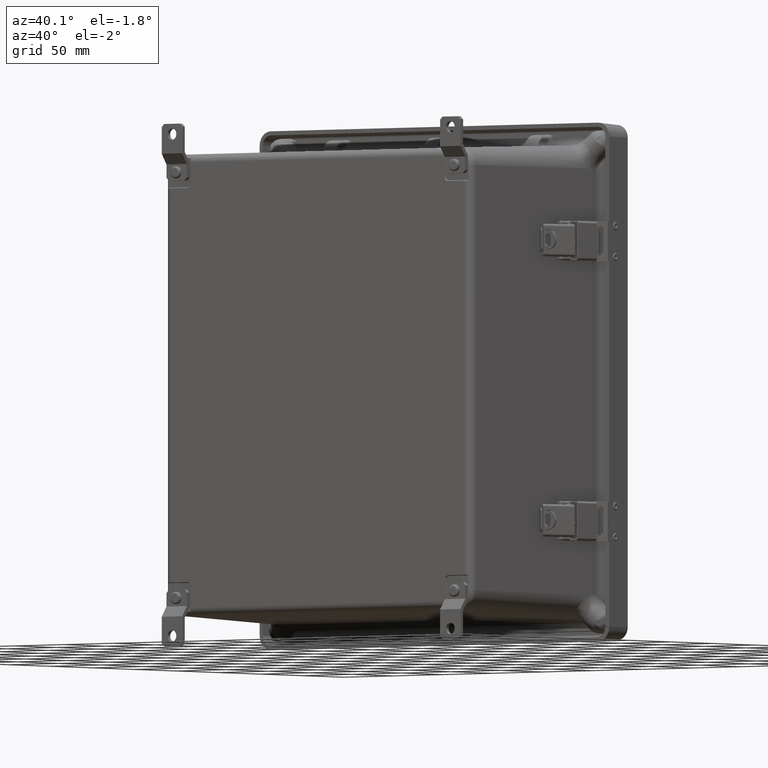
[diagram: clean part render]
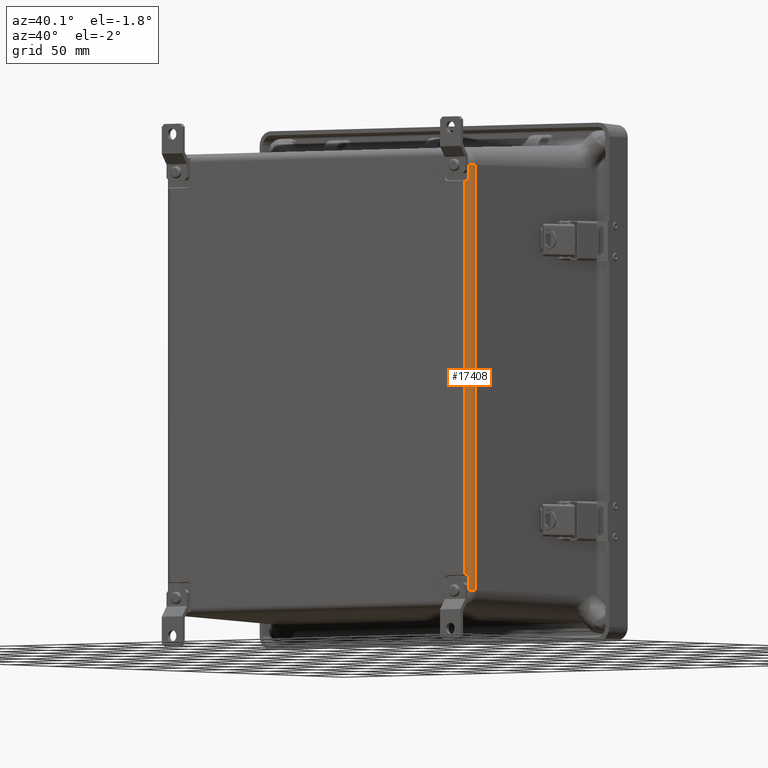
[diagram: same view with one face highlighted and labeled with its STEP entity id]
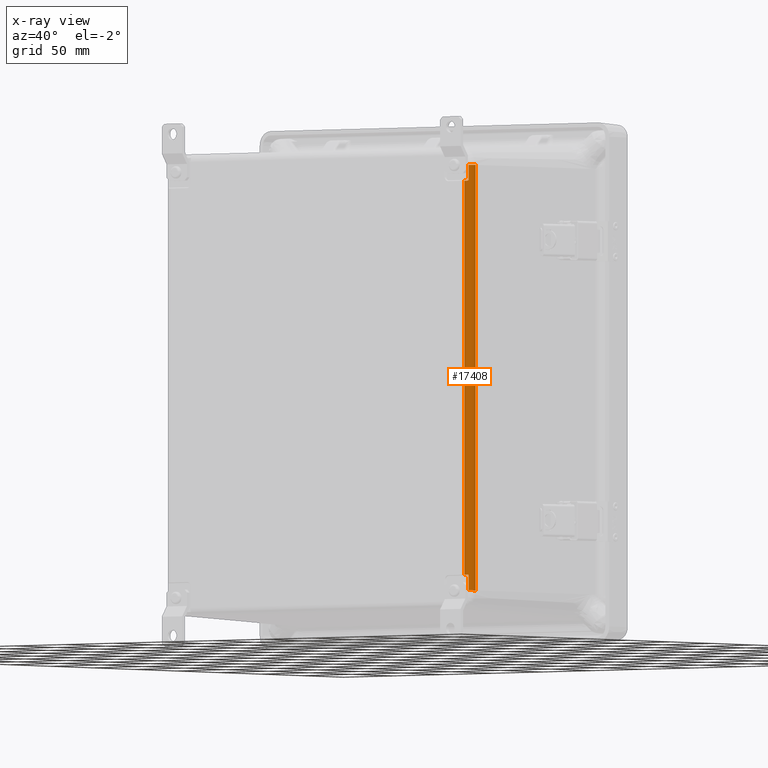
[diagram: x-ray of the same camera — body ghosted, the highlighted face saturated]
A machine part, auxiliary view. The second image highlights one B-rep face of the part: STEP entity #17408.
The next image is the same camera in x-ray: the body ghosted, the highlighted face saturated — about 0% of this face is hidden behind the body in this view.
In plain terms, the highlighted cylindrical surface (edge-blend (fillet) strip) has radius 6.3589 mm, axis along (0, 0, -1).
Its self-contained STEP definition (entity closure, byte-faithful):
#378 = DIRECTION ( 'NONE',  ( 1.000000000000000000, 0.0000000000000000000, 0.0000000000000000000 ) ) ;
#606 = CARTESIAN_POINT ( 'NONE',  ( 5.949744623173132600, -6.085731098691860000, 6.452978309398321100 ) ) ;
#2200 = ORIENTED_EDGE ( 'NONE', *, *, #11715, .T. ) ;
#2317 = LINE ( 'NONE', #38452, #3786 ) ;
#3786 = VECTOR ( 'NONE', #10078, 39.37007874015748100 ) ;
#3866 = CIRCLE ( 'NONE', #20037, 0.2503500000000002400 ) ;
#4077 = CARTESIAN_POINT ( 'NONE',  ( 5.912782705396014500, -6.106424124460360800, -5.973191476272734900 ) ) ;
#4154 = CARTESIAN_POINT ( 'NONE',  ( 5.949744623173131700, -6.085731098691859100, -6.453064890601678100 ) ) ;
#4399 =( BOUNDED_CURVE ( )  B_SPLINE_CURVE ( 3, ( #41432, #17820, #36860, #41641 ),
 .UNSPECIFIED., .F., .F. ) 
 B_SPLINE_CURVE_WITH_KNOTS ( ( 4, 4 ),
 ( 5.968991691712743900, 6.283185307179586200 ),
 .UNSPECIFIED. ) 
 CURVE ( )  GEOMETRIC_REPRESENTATION_ITEM ( )  RATIONAL_B_SPLINE_CURVE ( ( 1.000000000000000000, 0.9917904357860589700, 0.9917904357860589700, 1.000000000000000000 ) ) 
 REPRESENTATION_ITEM ( '' )  );
#5685 = CARTESIAN_POINT ( 'NONE',  ( 5.945630691465234800, -6.088452674556495300, 5.989415001250860000 ) ) ;
#5864 = DIRECTION ( 'NONE',  ( 0.0000000000000000000, 0.0000000000000000000, -1.000000000000000000 ) ) ;
#6743 = CARTESIAN_POINT ( 'NONE',  ( 5.836188400663856700, -6.128457498691858500, -5.970071971263227100 ) ) ;
#7361 = LINE ( 'NONE', #52114, #48132 ) ;
#8524 = CARTESIAN_POINT ( 'NONE',  ( 5.809860516774157300, -5.878107498691858400, 6.452978309398321100 ) ) ;
#8862 = CARTESIAN_POINT ( 'NONE',  ( 5.927805575556957000, -6.098958442211555900, -5.977245349787176900 ) ) ;
#10078 = DIRECTION ( 'NONE',  ( 0.0000000000000000000, 0.0000000000000000000, -1.000000000000000000 ) ) ;
#10259 = CARTESIAN_POINT ( 'NONE',  ( 5.949744623173132600, -6.085731098691860000, 6.002165274642971200 ) ) ;
#10473 = CARTESIAN_POINT ( 'NONE',  ( 5.938774503823132100, -6.092732702101429300, 5.982830861491367900 ) ) ;
#11715 = EDGE_CURVE ( 'NONE', #15386, #42441, #4399, .T. ) ;
#13068 = FACE_OUTER_BOUND ( 'NONE', #20851, .T. ) ;
#13181 = VERTEX_POINT ( 'NONE', #31679 ) ;
#13630 = CARTESIAN_POINT ( 'NONE',  ( 5.936117638240932400, -6.094311354246442200, -5.981208095454792200 ) ) ;
#15224 = CARTESIAN_POINT ( 'NONE',  ( 5.930667664263078900, -6.097403250842116800, 5.978306577161317700 ) ) ;
#15386 = VERTEX_POINT ( 'NONE', #46119 ) ;
#15604 = EDGE_CURVE ( 'NONE', #48296, #15386, #48795, .T. ) ;
#16088 = AXIS2_PLACEMENT_3D ( 'NONE', #57086, #28732, #378 ) ;
#16264 = CARTESIAN_POINT ( 'NONE',  ( 5.887231099927874700, -6.116201839998941700, -5.971077188012917400 ) ) ;
#17408 = ADVANCED_FACE ( 'NONE', ( #13068 ), #49370, .T. ) ;
#17820 = CARTESIAN_POINT ( 'NONE',  ( 5.862192073873441900, -6.124338463644835300, 5.970323235876694700 ) ) ;
#18069 = VERTEX_POINT ( 'NONE', #33259 ) ;
#18360 = CARTESIAN_POINT ( 'NONE',  ( 5.943499995308227900, -6.089822817054277400, -5.987036065948319500 ) ) ;
#19233 = EDGE_CURVE ( 'NONE', #31145, #42441, #7361, .T. ) ;
#19342 = VERTEX_POINT ( 'NONE', #48133 ) ;
#19981 = CARTESIAN_POINT ( 'NONE',  ( 5.918984578775467600, -6.103520474416673600, 5.974281421934980700 ) ) ;
#20037 = AXIS2_PLACEMENT_3D ( 'NONE', #34246, #5864, #39014 ) ;
#20187 = EDGE_CURVE ( 'NONE', #28504, #19342, #45814, .T. ) ;
#20851 = EDGE_LOOP ( 'NONE', ( #25706, #54072, #28704, #47454, #49452, #59745, #26770, #29901, #2200, #46607 ) ) ;
#23107 = CARTESIAN_POINT ( 'NONE',  ( 5.948771286609524400, -6.086391944683363400, -5.995340328322890300 ) ) ;
#23312 = VECTOR ( 'NONE', #47825, 39.37007874015748100 ) ;
#23562 = CARTESIAN_POINT ( 'NONE',  ( 5.809860516774157300, -6.128457498691858500, 5.969985390059869200 ) ) ;
#23706 = DIRECTION ( 'NONE',  ( -0.0000000000000000000, -0.0000000000000000000, 1.000000000000000000 ) ) ;
#24742 = CARTESIAN_POINT ( 'NONE',  ( 5.900225838078782200, -6.111679002446186900, 5.971547641516893100 ) ) ;
#24894 = EDGE_CURVE ( 'NONE', #58144, #18069, #3866, .T. ) ;
#25706 = ORIENTED_EDGE ( 'NONE', *, *, #58340, .T. ) ;
#26770 = ORIENTED_EDGE ( 'NONE', *, *, #27724, .T. ) ;
#27724 = EDGE_CURVE ( 'NONE', #18069, #48296, #42296, .T. ) ;
#27874 = CARTESIAN_POINT ( 'NONE',  ( 5.949744623173132600, -6.085731098691860000, -6.002251855846325600 ) ) ;
#28263 = B_SPLINE_CURVE_WITH_KNOTS ( 'NONE', 3,
 ( #56035, #60784, #32443, #4077, #37217, #8862, #41979, #13630, #46733, #18360, #51509, #23107, #56246, #27874 ),
 .UNSPECIFIED., .F., .F.,
 ( 4, 2, 2, 2, 2, 2, 4 ),
 ( 0.0000000000000000000, 0.0005220647425910906500, 0.001044129485182181300, 0.001305161856477708400, 0.001566194227773235700, 0.001827226599068762800, 0.002088258970364290200 ),
 .UNSPECIFIED. ) ;
#28504 = VERTEX_POINT ( 'NONE', #4154 ) ;
#28704 = ORIENTED_EDGE ( 'NONE', *, *, #40715, .T. ) ;
#28732 = DIRECTION ( 'NONE',  ( 0.0000000000000000000, 0.0000000000000000000, 1.000000000000000000 ) ) ;
#29311 = CARTESIAN_POINT ( 'NONE',  ( 5.949744623173133500, -6.085731098691859100, 5.998650317630509000 ) ) ;
#29510 = CARTESIAN_POINT ( 'NONE',  ( 5.887231099927874700, -6.116201839998941700, 5.970990606809562200 ) ) ;
#29901 = ORIENTED_EDGE ( 'NONE', *, *, #15604, .T. ) ;
#31145 = VERTEX_POINT ( 'NONE', #50817 ) ;
#31679 = CARTESIAN_POINT ( 'NONE',  ( 5.949744623173132600, -6.085731098691860000, -6.002251855846325600 ) ) ;
#32443 = CARTESIAN_POINT ( 'NONE',  ( 5.900223878103049400, -6.111679589152965200, -5.971634309243177600 ) ) ;
#33259 = CARTESIAN_POINT ( 'NONE',  ( 5.949744623173132600, -6.085731098691860000, 6.452978309398321100 ) ) ;
#34070 = CARTESIAN_POINT ( 'NONE',  ( 5.948763929146053900, -6.086396901630689800, 5.995232323439471300 ) ) ;
#34246 = CARTESIAN_POINT ( 'NONE',  ( 5.809860516774157300, -5.878107498691858400, 6.452978309398321100 ) ) ;
#36860 = CARTESIAN_POINT ( 'NONE',  ( 5.836188400663856700, -6.128457498691858500, 5.969985390059869200 ) ) ;
#37217 = CARTESIAN_POINT ( 'NONE',  ( 5.918945889177542200, -6.103539791424920800, -5.974357416981407100 ) ) ;
#37312 =( BOUNDED_CURVE ( )  B_SPLINE_CURVE ( 3, ( #58687, #6743, #44649, #16264 ),
 .UNSPECIFIED., .F., .F. ) 
 B_SPLINE_CURVE_WITH_KNOTS ( ( 4, 4 ),
 ( 3.141592653589793100, 3.455786269056635000 ),
 .UNSPECIFIED. ) 
 CURVE ( )  GEOMETRIC_REPRESENTATION_ITEM ( )  RATIONAL_B_SPLINE_CURVE ( ( 1.000000000000000000, 0.9917904357860589700, 0.9917904357860589700, 1.000000000000000000 ) ) 
 REPRESENTATION_ITEM ( '' )  );
#37410 = VERTEX_POINT ( 'NONE', #58532 ) ;
#38452 = CARTESIAN_POINT ( 'NONE',  ( 6.060058010318387600, -5.886844587691330200, 6.452978309398321100 ) ) ;
#38624 = AXIS2_PLACEMENT_3D ( 'NONE', #8524, #41835, #51385 ) ;
#38846 = CARTESIAN_POINT ( 'NONE',  ( 5.943491378647742400, -6.089828037965652600, 5.986942926962737700 ) ) ;
#39014 = DIRECTION ( 'NONE',  ( -1.000000000000000000, 0.0000000000000000000, 0.0000000000000000000 ) ) ;
#40715 = EDGE_CURVE ( 'NONE', #13181, #28504, #59590, .T. ) ;
#41432 = CARTESIAN_POINT ( 'NONE',  ( 5.887231099927874700, -6.116201839998941700, 5.970990606809562200 ) ) ;
#41641 = CARTESIAN_POINT ( 'NONE',  ( 5.809860516774157300, -6.128457498691858500, 5.969985390059869200 ) ) ;
#41835 = DIRECTION ( 'NONE',  ( 0.0000000000000000000, 0.0000000000000000000, -1.000000000000000000 ) ) ;
#41979 = CARTESIAN_POINT ( 'NONE',  ( 5.930659294234060600, -6.097407802480828000, -5.978389808472834400 ) ) ;
#42296 = LINE ( 'NONE', #52980, #54838 ) ;
#42441 = VERTEX_POINT ( 'NONE', #23562 ) ;
#43583 = CARTESIAN_POINT ( 'NONE',  ( 5.936133018952598500, -6.094302431539861500, 5.981130431724999100 ) ) ;
#44649 = CARTESIAN_POINT ( 'NONE',  ( 5.862192073873441900, -6.124338463644835300, -5.970409817080052600 ) ) ;
#45303 = EDGE_CURVE ( 'NONE', #58144, #19342, #2317, .T. ) ;
#45814 = CIRCLE ( 'NONE', #16088, 0.2503500000000002400 ) ;
#46119 = CARTESIAN_POINT ( 'NONE',  ( 5.887231099927874700, -6.116201839998941700, 5.970990606809562200 ) ) ;
#46607 = ORIENTED_EDGE ( 'NONE', *, *, #19233, .F. ) ;
#46733 = CARTESIAN_POINT ( 'NONE',  ( 5.938754766684076500, -6.092744770833294700, -5.982901192567437600 ) ) ;
#47454 = ORIENTED_EDGE ( 'NONE', *, *, #20187, .T. ) ;
#47825 = DIRECTION ( 'NONE',  ( 0.0000000000000000000, 0.0000000000000000000, -1.000000000000000000 ) ) ;
#48132 = VECTOR ( 'NONE', #23706, 39.37007874015748100 ) ;
#48133 = CARTESIAN_POINT ( 'NONE',  ( 6.060058010318387600, -5.886844587691329300, -6.453064890601678100 ) ) ;
#48296 = VERTEX_POINT ( 'NONE', #48628 ) ;
#48363 = CARTESIAN_POINT ( 'NONE',  ( 5.927817096889353500, -6.098952138010370800, 5.977163542048299600 ) ) ;
#48628 = CARTESIAN_POINT ( 'NONE',  ( 5.949744623173132600, -6.085731098691860000, 6.002165274642971200 ) ) ;
#48795 = B_SPLINE_CURVE_WITH_KNOTS ( 'NONE', 3,
 ( #10259, #29311, #34070, #5685, #38846, #10473, #43583, #15224, #48363, #19981, #53131, #24742, #57855, #29510 ),
 .UNSPECIFIED., .F., .F.,
 ( 4, 2, 2, 2, 2, 2, 4 ),
 ( 0.0000000000000000000, 0.0002675940815743749300, 0.0005351881631487498500, 0.0008027822447231247300, 0.001070376326297499700, 0.001605564489446249500, 0.002140752652594999400 ),
 .UNSPECIFIED. ) ;
#49370 = CYLINDRICAL_SURFACE ( 'NONE', #38624, 0.2503500000000002400 ) ;
#49452 = ORIENTED_EDGE ( 'NONE', *, *, #45303, .F. ) ;
#50508 = EDGE_CURVE ( 'NONE', #37410, #13181, #28263, .T. ) ;
#50817 = CARTESIAN_POINT ( 'NONE',  ( 5.809860516774157300, -6.128457498691858500, -5.970071971263224400 ) ) ;
#51385 = DIRECTION ( 'NONE',  ( -1.000000000000000000, 0.0000000000000000000, 0.0000000000000000000 ) ) ;
#51509 = CARTESIAN_POINT ( 'NONE',  ( 5.945647519376081800, -6.088441762050511100, -5.989525122329119700 ) ) ;
#52114 = CARTESIAN_POINT ( 'NONE',  ( 5.809860516774157300, -6.128457498691858500, 6.452978309398321100 ) ) ;
#52980 = CARTESIAN_POINT ( 'NONE',  ( 5.949744623173132600, -6.085731098691860000, 6.452978309398321100 ) ) ;
#53131 = CARTESIAN_POINT ( 'NONE',  ( 5.912795355805428700, -6.106418596920024200, 5.973106793514925400 ) ) ;
#54072 = ORIENTED_EDGE ( 'NONE', *, *, #50508, .T. ) ;
#54838 = VECTOR ( 'NONE', #57692, 39.37007874015748100 ) ;
#56035 = CARTESIAN_POINT ( 'NONE',  ( 5.887231099927874700, -6.116201839998941700, -5.971077188012917400 ) ) ;
#56246 = CARTESIAN_POINT ( 'NONE',  ( 5.949744623173133500, -6.085731098691860900, -5.998735681157276300 ) ) ;
#57086 = CARTESIAN_POINT ( 'NONE',  ( 5.809860516774156400, -5.878107498691858400, -6.453064890601678100 ) ) ;
#57472 = CARTESIAN_POINT ( 'NONE',  ( 6.060058010318387600, -5.886844587691329300, 6.452978309398321100 ) ) ;
#57692 = DIRECTION ( 'NONE',  ( 0.0000000000000000000, 0.0000000000000000000, -1.000000000000000000 ) ) ;
#57855 = CARTESIAN_POINT ( 'NONE',  ( 5.893793925650100200, -6.114069199422617700, 5.971165527316253800 ) ) ;
#58144 = VERTEX_POINT ( 'NONE', #57472 ) ;
#58340 = EDGE_CURVE ( 'NONE', #31145, #37410, #37312, .T. ) ;
#58532 = CARTESIAN_POINT ( 'NONE',  ( 5.887231099927874700, -6.116201839998941700, -5.971077188012917400 ) ) ;
#58687 = CARTESIAN_POINT ( 'NONE',  ( 5.809860516774157300, -6.128457498691858500, -5.970071971263224400 ) ) ;
#59590 = LINE ( 'NONE', #606, #23312 ) ;
#59745 = ORIENTED_EDGE ( 'NONE', *, *, #24894, .T. ) ;
#60784 = CARTESIAN_POINT ( 'NONE',  ( 5.893794144035603600, -6.114069128456571400, -5.971252114340285500 ) ) ;